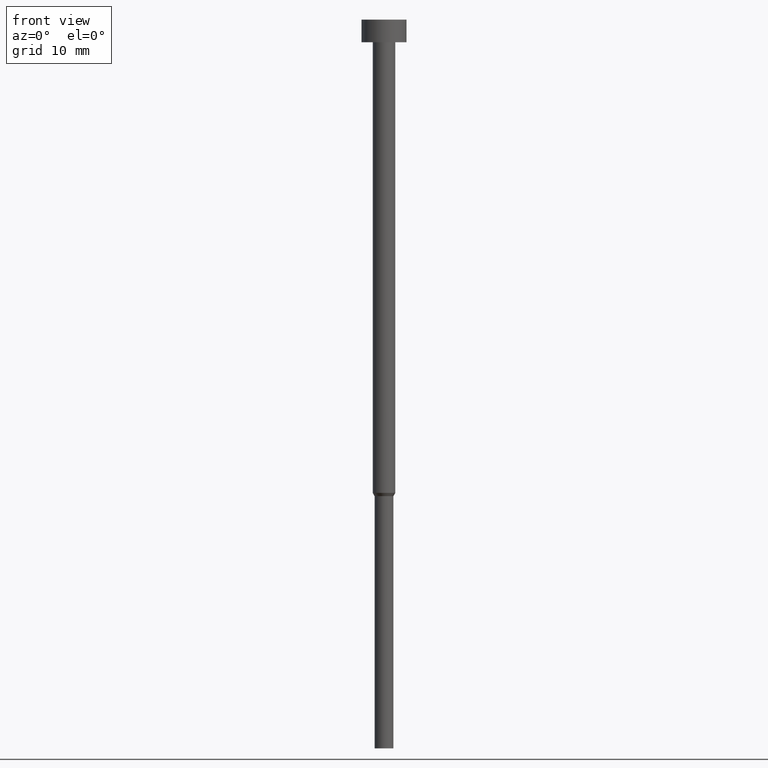
[diagram: clean part render]
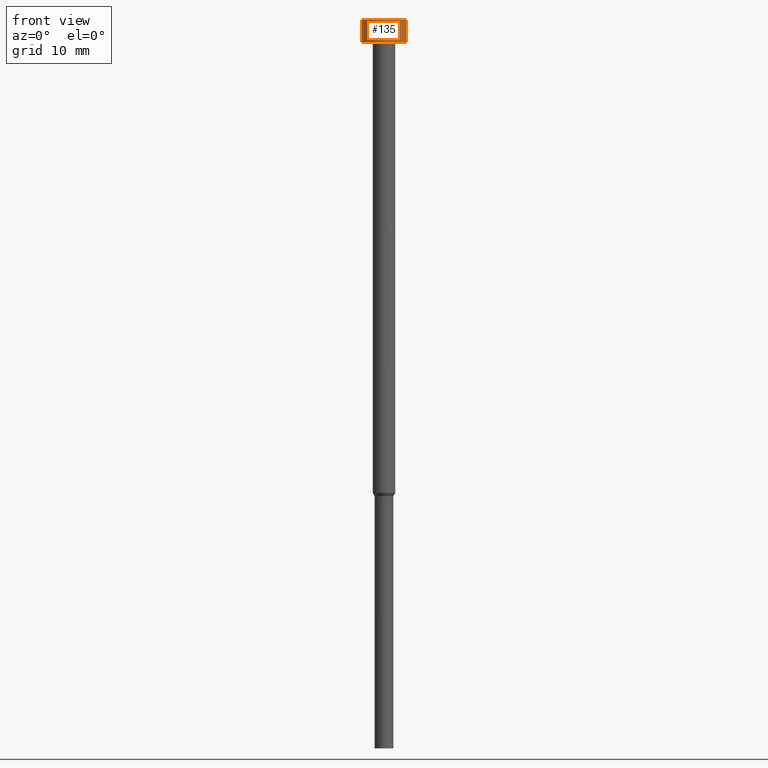
[diagram: same view with one face highlighted and labeled with its STEP entity id]
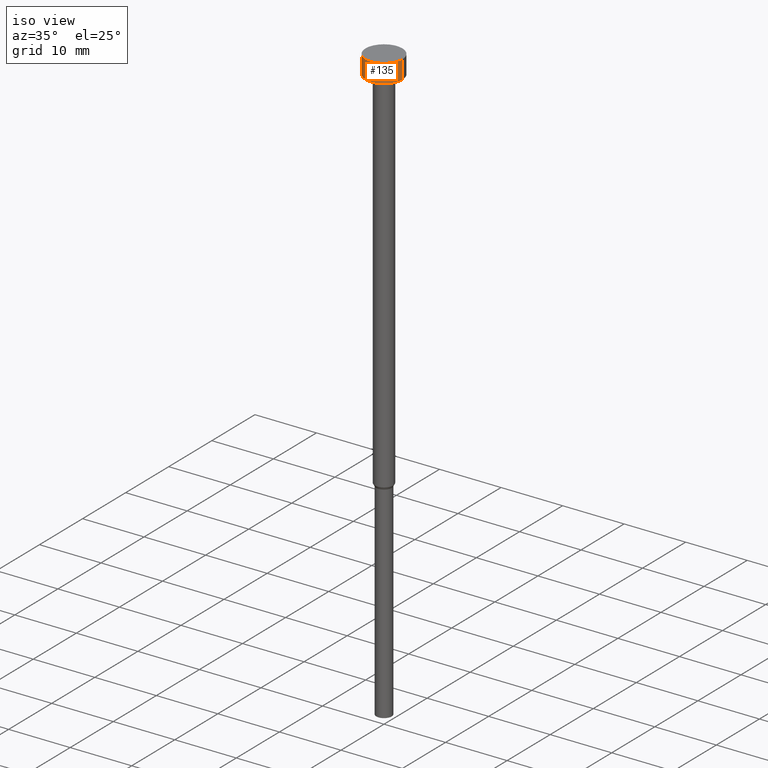
[diagram: same view with one face highlighted and labeled with its STEP entity id]
A machine part, front view. The second image highlights one B-rep face of the part: STEP entity #135.
A second angle (iso view) of the same face is appended — the face is thin or edge-on in the first view.
In plain terms, the highlighted cylindrical surface (edge-blend (fillet) strip) has radius 3 mm, axis along (-0, -0, 1).
Its self-contained STEP definition (entity closure, byte-faithful):
#3 = VERTEX_POINT ( 'NONE', #273 ) ;
#11 = CARTESIAN_POINT ( 'NONE',  ( 3.000000000000000000, 0.000000000000000000, 0.000000000000000000 ) ) ;
#17 = ORIENTED_EDGE ( 'NONE', *, *, #173, .T. ) ;
#54 = CARTESIAN_POINT ( 'NONE',  ( 3.000000000000000000, 0.000000000000000000, -3.000000000000000444 ) ) ;
#56 = DIRECTION ( 'NONE',  ( -0.000000000000000000, -0.000000000000000000, 1.000000000000000000 ) ) ;
#75 = AXIS2_PLACEMENT_3D ( 'NONE', #211, #308, #152 ) ;
#78 = EDGE_CURVE ( 'NONE', #99, #3, #82, .T. ) ;
#80 = DIRECTION ( 'NONE',  ( -0.000000000000000000, -0.000000000000000000, 1.000000000000000000 ) ) ;
#82 = LINE ( 'NONE', #196, #188 ) ;
#94 = DIRECTION ( 'NONE',  ( -0.000000000000000000, -0.000000000000000000, 1.000000000000000000 ) ) ;
#99 = VERTEX_POINT ( 'NONE', #303 ) ;
#120 = CARTESIAN_POINT ( 'NONE',  ( 0.000000000000000000, 0.000000000000000000, -3.673940397442059868E-16 ) ) ;
#135 = ADVANCED_FACE ( 'NONE', ( #142 ), #278, .T. ) ;
#140 = AXIS2_PLACEMENT_3D ( 'NONE', #120, #153, #329 ) ;
#142 = FACE_OUTER_BOUND ( 'NONE', #316, .T. ) ;
#145 = DIRECTION ( 'NONE',  ( 1.000000000000000000, 0.000000000000000000, 0.000000000000000000 ) ) ;
#152 = DIRECTION ( 'NONE',  ( 1.000000000000000000, 0.000000000000000000, 0.000000000000000000 ) ) ;
#153 = DIRECTION ( 'NONE',  ( -0.000000000000000000, -0.000000000000000000, 1.000000000000000000 ) ) ;
#168 = VECTOR ( 'NONE', #94, 1000.000000000000000 ) ;
#173 = EDGE_CURVE ( 'NONE', #245, #253, #231, .T. ) ;
#180 = ORIENTED_EDGE ( 'NONE', *, *, #261, .F. ) ;
#188 = VECTOR ( 'NONE', #56, 1000.000000000000000 ) ;
#196 = CARTESIAN_POINT ( 'NONE',  ( -3.000000000000000000, 3.673940397442059868E-16, 0.000000000000000000 ) ) ;
#208 = AXIS2_PLACEMENT_3D ( 'NONE', #250, #80, #145 ) ;
#211 = CARTESIAN_POINT ( 'NONE',  ( 0.000000000000000000, 0.000000000000000000, -3.000000000000000444 ) ) ;
#231 = LINE ( 'NONE', #11, #168 ) ;
#245 = VERTEX_POINT ( 'NONE', #54 ) ;
#248 = CIRCLE ( 'NONE', #140, 3.000000000000000000 ) ;
#250 = CARTESIAN_POINT ( 'NONE',  ( 0.000000000000000000, 0.000000000000000000, 0.000000000000000000 ) ) ;
#253 = VERTEX_POINT ( 'NONE', #334 ) ;
#261 = EDGE_CURVE ( 'NONE', #3, #253, #248, .T. ) ;
#273 = CARTESIAN_POINT ( 'NONE',  ( -3.000000000000000000, 3.673940397442059868E-16, -3.673940397442059868E-16 ) ) ;
#276 = CIRCLE ( 'NONE', #75, 3.000000000000000000 ) ;
#278 = CYLINDRICAL_SURFACE ( 'NONE', #208, 3.000000000000000000 ) ;
#301 = EDGE_CURVE ( 'NONE', #99, #245, #276, .T. ) ;
#303 = CARTESIAN_POINT ( 'NONE',  ( -3.000000000000000000, 3.673940397442059868E-16, -3.000000000000000444 ) ) ;
#308 = DIRECTION ( 'NONE',  ( -0.000000000000000000, -0.000000000000000000, 1.000000000000000000 ) ) ;
#313 = ORIENTED_EDGE ( 'NONE', *, *, #78, .F. ) ;
#316 = EDGE_LOOP ( 'NONE', ( #313, #345, #17, #180 ) ) ;
#329 = DIRECTION ( 'NONE',  ( 1.000000000000000000, 0.000000000000000000, 0.000000000000000000 ) ) ;
#334 = CARTESIAN_POINT ( 'NONE',  ( 3.000000000000000000, 0.000000000000000000, -3.673940397442059868E-16 ) ) ;
#345 = ORIENTED_EDGE ( 'NONE', *, *, #301, .T. ) ;